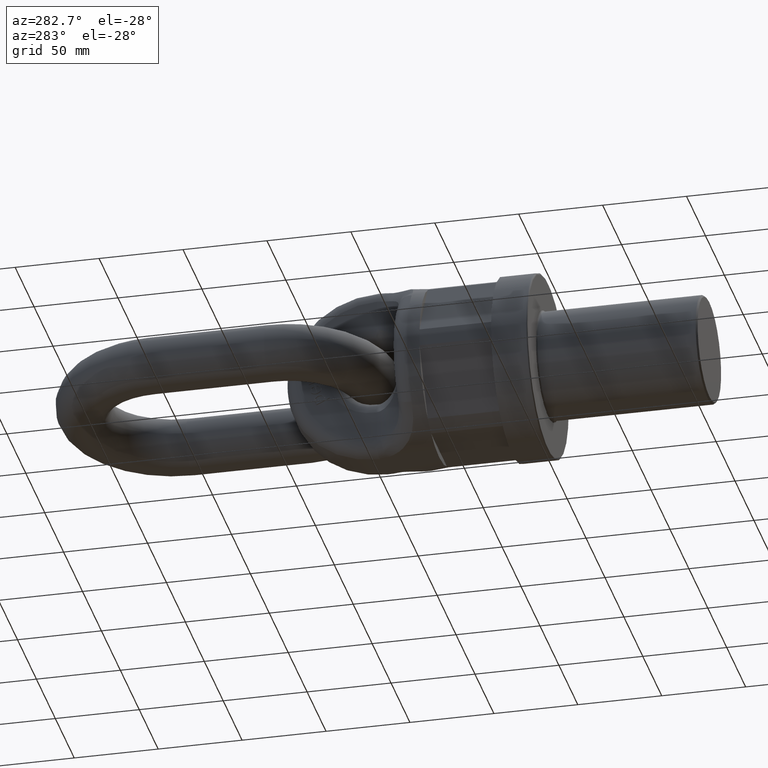
[diagram: clean part render]
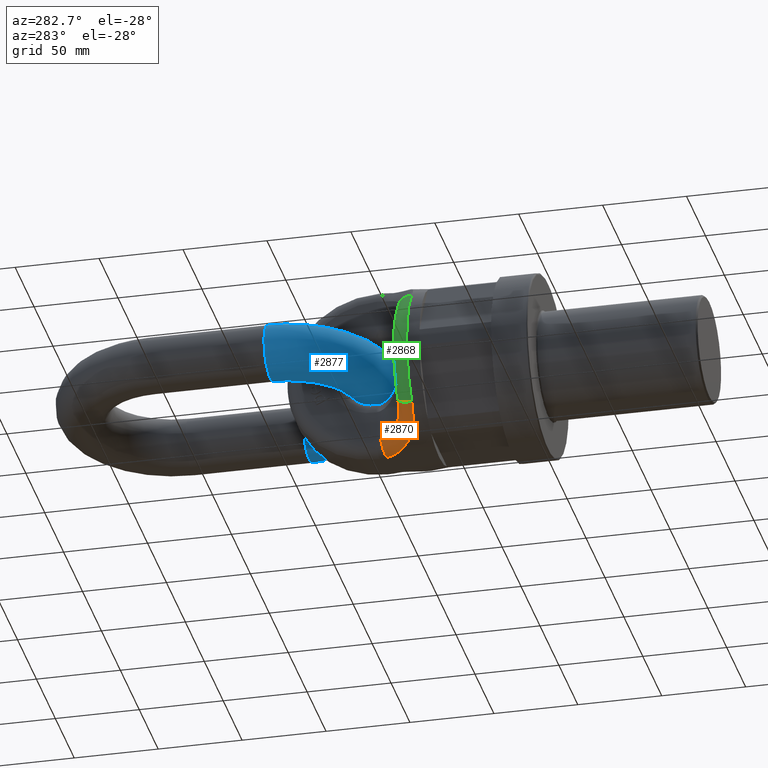
[diagram: same view with three faces highlighted in distinct colors, each labeled with its STEP entity id]
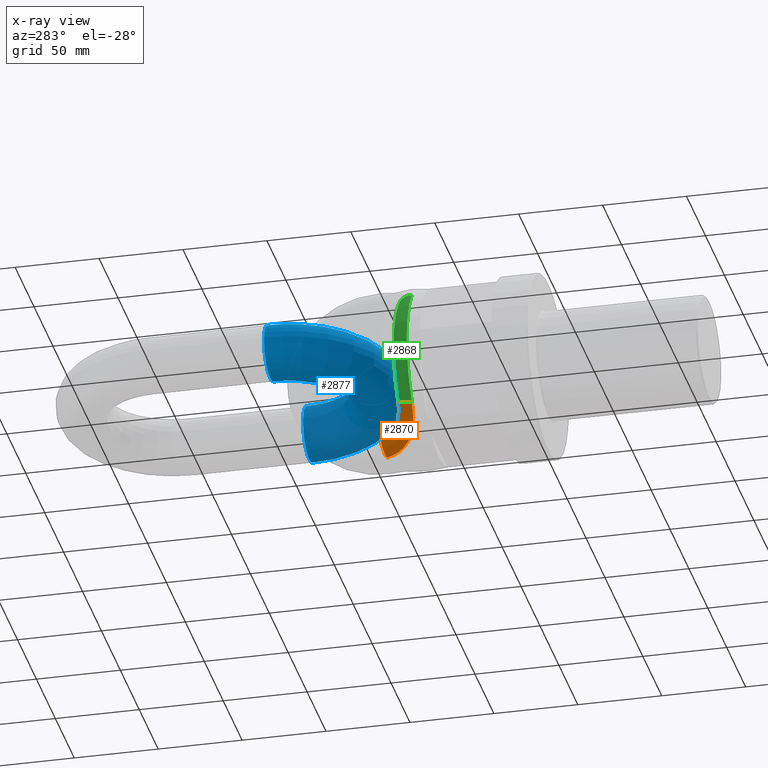
[diagram: x-ray of the same camera — body ghosted, the three highlighted faces saturated]
A machine part, auxiliary view with three faces highlighted in distinct colors.
The next image is the same camera in x-ray (body ghosted, the three faces saturated) — at least one of them is partly hidden behind the body in this view.
Their STEP definitions:

[orange] entity #2870 — the highlighted face is a freeform B-spline surface patch.
#211=(
BOUNDED_SURFACE()
B_SPLINE_SURFACE(3,2,((#9688,#9689,#9690),(#9691,#9692,#9693),(#9694,#9695,
#9696),(#9697,#9698,#9699),(#9700,#9701,#9702),(#9703,#9704,#9705),(#9706,
#9707,#9708),(#9709,#9710,#9711),(#9712,#9713,#9714),(#9715,#9716,#9717),
(#9718,#9719,#9720),(#9721,#9722,#9723)),.UNSPECIFIED.,.F.,.F.,.F.)
B_SPLINE_SURFACE_WITH_KNOTS((4,2,2,2,2,4),(3,3),(0.,0.25,0.375,0.5,0.75,
1.),(0.,1.),.UNSPECIFIED.)
GEOMETRIC_REPRESENTATION_ITEM()
RATIONAL_B_SPLINE_SURFACE(((1.,0.76096027957185,1.),(1.,0.759627055080253,
1.),(1.,0.761967354451239,1.),(1.,0.765009145439506,1.),(1.,0.765899646124786,
1.),(1.,0.766201231421255,1.),(1.,0.765574817468634,1.),(1.,0.759907690280172,
1.),(1.,0.750612782409193,1.),(1.,0.719939054405171,1.),(1.,0.698520285728129,
1.),(1.,0.673958891528948,1.)))
REPRESENTATION_ITEM('')
SURFACE()
);
#349=B_SPLINE_CURVE_WITH_KNOTS('',3,(#7020,#7021,#7022,#7023,#7024,#7025,
#7026,#7027,#7028,#7029,#7030,#7031),.UNSPECIFIED.,.F.,.F.,(4,2,2,2,2,4),
(0.,0.25,0.5,0.75,0.875,1.),.UNSPECIFIED.);
#534=B_SPLINE_CURVE_WITH_KNOTS('',3,(#8628,#8629,#8630,#8631,#8632,#8633,
#8634,#8635,#8636,#8637),.UNSPECIFIED.,.F.,.F.,(4,2,2,2,4),(0.,0.25,0.5,
0.75,1.),.UNSPECIFIED.);
#2006=FACE_OUTER_BOUND('',#3329,.T.);
#2870=ADVANCED_FACE('',(#2006),#211,.T.);
#3329=EDGE_LOOP('',(#4505,#4506,#4507,#4508));
#4505=ORIENTED_EDGE('',*,*,#5519,.T.);
#4506=ORIENTED_EDGE('',*,*,#5338,.F.);
#4507=ORIENTED_EDGE('',*,*,#5521,.F.);
#4508=ORIENTED_EDGE('',*,*,#5059,.F.);
#4646=VERTEX_POINT('',#7032);
#4647=VERTEX_POINT('',#7033);
#4831=VERTEX_POINT('',#8612);
#4832=VERTEX_POINT('',#8627);
#5059=EDGE_CURVE('',#4646,#4647,#349,.T.);
#5338=EDGE_CURVE('',#4832,#4831,#534,.T.);
#5519=EDGE_CURVE('',#4646,#4831,#5585,.T.);
#5521=EDGE_CURVE('',#4647,#4832,#5587,.T.);
#5585=CIRCLE('',#5784,8.75);
#5587=CIRCLE('',#5787,8.75);
#5784=AXIS2_PLACEMENT_3D('',#9672,#6527,#6528);
#5787=AXIS2_PLACEMENT_3D('',#9687,#6533,#6534);
#6527=DIRECTION('',(0.662930101454881,2.96858289696237E-16,-0.748681294400375));
#6528=DIRECTION('',(-0.748681294400376,0.,-0.662930101454881));
#6533=DIRECTION('',(0.146876638936781,0.982126697869442,-0.117704724912388));
#6534=DIRECTION('',(0.989001605901433,-0.147904778571849,2.37904933848248E-15));
#7020=CARTESIAN_POINT('',(-39.52344512261,72.4488602807413,-34.9965755535044));
#7021=CARTESIAN_POINT('',(-37.005756647153,72.4488602807413,-37.8399315311034));
#7022=CARTESIAN_POINT('',(-34.1935916373493,72.7125801672574,-40.4219757461274));
#7023=CARTESIAN_POINT('',(-28.2940706816396,74.1097734282731,-44.9017778400233));
#7024=CARTESIAN_POINT('',(-25.1629883172388,75.2624464472764,-46.8210760471722));
#7025=CARTESIAN_POINT('',(-19.2267276015419,78.7079250023469,-49.8942281519693));
#7026=CARTESIAN_POINT('',(-16.3763660403344,81.0409759726313,-51.0734708220809));
#7027=CARTESIAN_POINT('',(-12.9982566390224,85.3646433570751,-52.4037027822614));
#7028=CARTESIAN_POINT('',(-12.0035120404411,86.971080786363,-52.7846340116064));
#7029=CARTESIAN_POINT('',(-10.4553507422444,90.3303236062721,-53.4276917862727));
#7030=CARTESIAN_POINT('',(-9.88394109416931,92.0984665408945,-53.6966141580966));
#7031=CARTESIAN_POINT('',(-9.54646529306761,93.964264621802,-53.930569898797));
#7032=CARTESIAN_POINT('',(-39.52344512261,72.4488602807413,-34.9965755535044));
#7033=CARTESIAN_POINT('',(-9.54646529306767,93.9642646218021,-53.9305698987969));
#8612=CARTESIAN_POINT('',(-32.9999999999999,82.,-29.2203017647613));
#8627=CARTESIAN_POINT('',(-16.6814735026263,96.0595711535645,-45.3507065058065));
#8628=CARTESIAN_POINT('',(-16.6814735026263,96.0595711535645,-45.3507065058065));
#8629=CARTESIAN_POINT('',(-17.0437674787635,93.637003555222,-44.9064030182571));
#8630=CARTESIAN_POINT('',(-17.946310792859,91.3581873877362,-44.3369626685821));
#8631=CARTESIAN_POINT('',(-20.4956545144832,87.4881704466188,-42.7044170420056));
#8632=CARTESIAN_POINT('',(-22.1481259513841,85.9074067172058,-41.6096861318156));
#8633=CARTESIAN_POINT('',(-25.5090683102128,83.6601038288053,-38.8350320934065));
#8634=CARTESIAN_POINT('',(-27.2333125352231,82.9571046881664,-37.1403512189054));
#8635=CARTESIAN_POINT('',(-30.3431450635485,82.1360945725757,-33.4134298577143));
#8636=CARTESIAN_POINT('',(-31.7592960007207,82.,-31.3645490236709));
#8637=CARTESIAN_POINT('',(-32.9999999999999,82.,-29.2203017647613));
#9672=CARTESIAN_POINT('',(-32.9999999999999,73.25,-29.2203017647613));
#9687=CARTESIAN_POINT('',(-8.02770945098873,94.7654043410608,-45.3507065058065));
#9688=CARTESIAN_POINT('',(-9.54646529306767,93.9642646218021,-53.9305698987969));
#9689=CARTESIAN_POINT('',(-16.8113504233416,95.1911172442503,-52.7591402491912));
#9690=CARTESIAN_POINT('',(-16.6814735026263,96.0595711535645,-45.3507065058065));
#9691=CARTESIAN_POINT('',(-10.1431138846984,90.6655813042039,-53.5169421289083));
#9692=CARTESIAN_POINT('',(-17.2741743213486,92.8806359148434,-52.3714746727324));
#9693=CARTESIAN_POINT('',(-17.0039183799905,93.9034643353322,-44.9552724304935));
#9694=CARTESIAN_POINT('',(-11.536001756363,87.4687700766435,-52.9738447719199));
#9695=CARTESIAN_POINT('',(-18.2322870826746,90.6426566978067,-51.7926520865371));
#9696=CARTESIAN_POINT('',(-17.7625740377455,91.8149905595056,-44.4528521621905));
#9697=CARTESIAN_POINT('',(-14.5949530011846,83.245124914222,-51.7766814310337));
#9698=CARTESIAN_POINT('',(-20.3983049608685,87.6434322323486,-50.5553553512517));
#9699=CARTESIAN_POINT('',(-19.4281057565233,89.0549848100938,-43.3884303831524));
#9700=CARTESIAN_POINT('',(-15.7606517931927,81.944531686619,-51.3165208549942));
#9701=CARTESIAN_POINT('',(-21.2304803320741,86.7165374735902,-50.086478681122));
#9702=CARTESIAN_POINT('',(-20.0627466244046,88.2050922057702,-42.9842503232971));
#9703=CARTESIAN_POINT('',(-18.3564387664407,79.5568244735509,-50.212651128255));
#9704=CARTESIAN_POINT('',(-23.1175077905086,85.0304176445545,-48.9986331644795));
#9705=CARTESIAN_POINT('',(-21.4755876165479,86.6448082844611,-42.0261219175661));
#9706=CARTESIAN_POINT('',(-19.79332757077,78.47085800328,-49.5641739701744));
#9707=CARTESIAN_POINT('',(-24.1816818402197,84.2698166919864,-48.3734198105896));
#9708=CARTESIAN_POINT('',(-22.2574860857157,85.9351668284156,-41.468218613343));
#9709=CARTESIAN_POINT('',(-24.2541947860193,75.6704290080954,-47.3389293749113));
#9710=CARTESIAN_POINT('',(-27.5522603869668,82.375359979389,-46.2910655599413));
#9711=CARTESIAN_POINT('',(-24.6846040401649,84.1051835251537,-39.5684133451824));
#9712=CARTESIAN_POINT('',(-27.536640031968,74.3501744366092,-45.4123681578853));
#9713=CARTESIAN_POINT('',(-30.1572887092022,81.596381285823,-44.5357456292685));
#9714=CARTESIAN_POINT('',(-26.4701648671392,83.2424429132791,-37.9411645381998));
#9715=CARTESIAN_POINT('',(-33.803957293071,72.7540447339149,-40.7715303432523));
#9716=CARTESIAN_POINT('',(-35.2622181507365,81.095445066057,-40.4968991414557));
#9717=CARTESIAN_POINT('',(-29.8818065895385,82.1994274649065,-34.0451432588958));
#9718=CARTESIAN_POINT('',(-36.849326042701,72.4488602795073,-38.0165967135329));
#9719=CARTESIAN_POINT('',(-37.876593340605,81.387272810426,-38.0961627924558));
#9720=CARTESIAN_POINT('',(-31.5399786276555,82.,-31.7435843743742));
#9721=CARTESIAN_POINT('',(-39.52344512261,72.4488602807412,-34.9965755535044));
#9722=CARTESIAN_POINT('',(-40.1809218940648,82.,-35.5787473615418));
#9723=CARTESIAN_POINT('',(-32.9999999999999,82.,-29.2203017647613));

[blue] entity #2877 — the highlighted toroidal blend (fillet) surface has major radius 51.5 mm and minor (blend) radius 16.5 mm.
#1796=TOROIDAL_SURFACE('',#5797,51.5,16.5);
#2877=ADVANCED_FACE('',(#3051,#3052),#1796,.T.);
#3051=FACE_BOUND('',#3337,.T.);
#3052=FACE_BOUND('',#3338,.T.);
#3337=EDGE_LOOP('',(#4529));
#3338=EDGE_LOOP('',(#4530));
#4529=ORIENTED_EDGE('',*,*,#5527,.T.);
#4530=ORIENTED_EDGE('',*,*,#5525,.F.);
#4929=VERTEX_POINT('',#9826);
#4931=VERTEX_POINT('',#9831);
#5525=EDGE_CURVE('',#4929,#4929,#5591,.T.);
#5527=EDGE_CURVE('',#4931,#4931,#5593,.T.);
#5591=CIRCLE('',#5793,16.5);
#5593=CIRCLE('',#5796,16.5);
#5793=AXIS2_PLACEMENT_3D('',#9825,#6545,#6546);
#5796=AXIS2_PLACEMENT_3D('',#9830,#6551,#6552);
#5797=AXIS2_PLACEMENT_3D('',#9832,#6553,#6554);
#6545=DIRECTION('',(-1.01064309961486E-15,1.,0.));
#6546=DIRECTION('',(0.,0.,-1.));
#6551=DIRECTION('',(0.,-1.,0.));
#6552=DIRECTION('',(0.,0.,-1.));
#6553=DIRECTION('',(0.,0.,-1.));
#6554=DIRECTION('',(-1.,0.,0.));
#9825=CARTESIAN_POINT('',(-51.5,154.,0.));
#9826=CARTESIAN_POINT('',(-51.5,154.,-16.5));
#9830=CARTESIAN_POINT('',(51.5,154.,0.));
#9831=CARTESIAN_POINT('',(51.5,154.,-16.5));
#9832=CARTESIAN_POINT('',(4.16333634234434E-14,154.,0.));

[green] entity #2868 — the highlighted toroidal blend (fillet) surface has major radius 44.0775 mm and minor (blend) radius 8.75 mm.
#1793=TOROIDAL_SURFACE('',#5785,44.0775003286677,8.75);
#2004=FACE_OUTER_BOUND('',#3327,.T.);
#2868=ADVANCED_FACE('',(#2004),#1793,.T.);
#3327=EDGE_LOOP('',(#4497,#4498,#4499,#4500));
#4497=ORIENTED_EDGE('',*,*,#5518,.T.);
#4498=ORIENTED_EDGE('',*,*,#5343,.F.);
#4499=ORIENTED_EDGE('',*,*,#5519,.F.);
#4500=ORIENTED_EDGE('',*,*,#5066,.F.);
#4646=VERTEX_POINT('',#7032);
#4653=VERTEX_POINT('',#7074);
#4831=VERTEX_POINT('',#8612);
#4833=VERTEX_POINT('',#8650);
#5066=EDGE_CURVE('',#4653,#4646,#5557,.T.);
#5343=EDGE_CURVE('',#4831,#4833,#5579,.T.);
#5518=EDGE_CURVE('',#4653,#4833,#5584,.T.);
#5519=EDGE_CURVE('',#4646,#4831,#5585,.T.);
#5557=CIRCLE('',#5648,52.7907474358159);
#5579=CIRCLE('',#5729,44.0775003286677);
#5584=CIRCLE('',#5783,8.75);
#5585=CIRCLE('',#5784,8.75);
#5648=AXIS2_PLACEMENT_3D('',#7075,#5967,#5968);
#5729=AXIS2_PLACEMENT_3D('',#8667,#6291,#6292);
#5783=AXIS2_PLACEMENT_3D('',#9635,#6525,#6526);
#5784=AXIS2_PLACEMENT_3D('',#9672,#6527,#6528);
#5785=AXIS2_PLACEMENT_3D('',#9673,#6529,#6530);
#5967=DIRECTION('',(0.,-1.,0.));
#5968=DIRECTION('',(-2.34291072916505E-15,0.,1.));
#6291=DIRECTION('',(0.,1.,0.));
#6292=DIRECTION('',(2.34291072916505E-15,0.,-1.));
#6525=DIRECTION('',(-0.662930101454878,2.28856183412548E-16,-0.748681294400378));
#6526=DIRECTION('',(-0.748681294400378,0.,0.662930101454878));
#6527=DIRECTION('',(0.662930101454881,2.96858289696237E-16,-0.748681294400375));
#6528=DIRECTION('',(-0.748681294400376,0.,-0.662930101454881));
#6529=DIRECTION('',(0.,1.,0.));
#6530=DIRECTION('',(2.34291072916505E-15,0.,-1.));
#7032=CARTESIAN_POINT('',(-39.52344512261,72.4488602807413,-34.9965755535044));
#7074=CARTESIAN_POINT('',(-39.5234451226101,72.4488602807413,34.9965755535043));
#7075=CARTESIAN_POINT('',(0.,72.4488602807412,0.));
#8612=CARTESIAN_POINT('',(-32.9999999999999,82.,-29.2203017647613));
#8650=CARTESIAN_POINT('',(-33.0000000000001,82.,29.2203017647611));
#8667=CARTESIAN_POINT('',(0.,82.,0.));
#9635=CARTESIAN_POINT('',(-33.0000000000001,73.25,29.2203017647611));
#9672=CARTESIAN_POINT('',(-32.9999999999999,73.25,-29.2203017647613));
#9673=CARTESIAN_POINT('',(0.,73.25,0.));